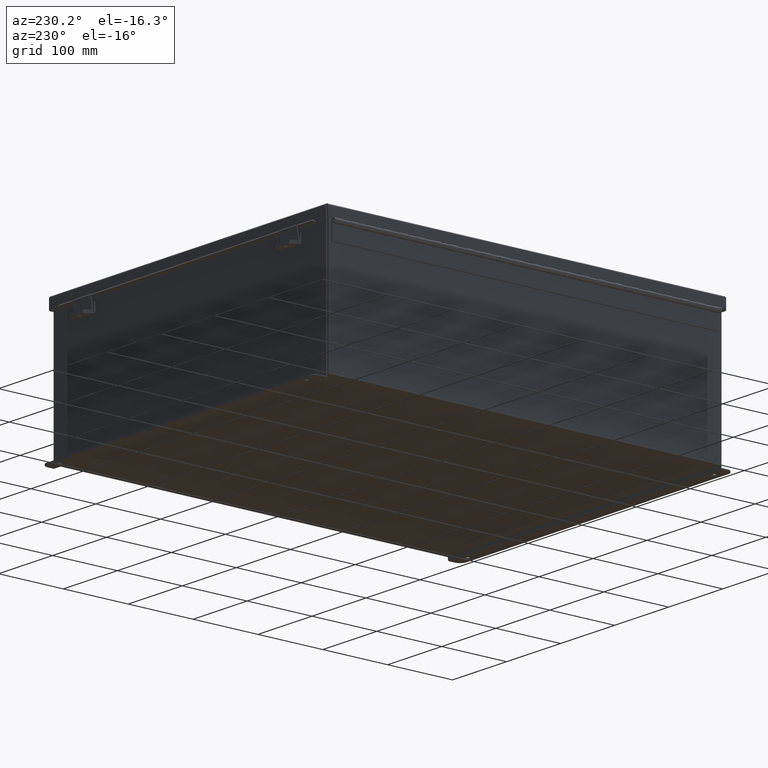
[diagram: clean part render]
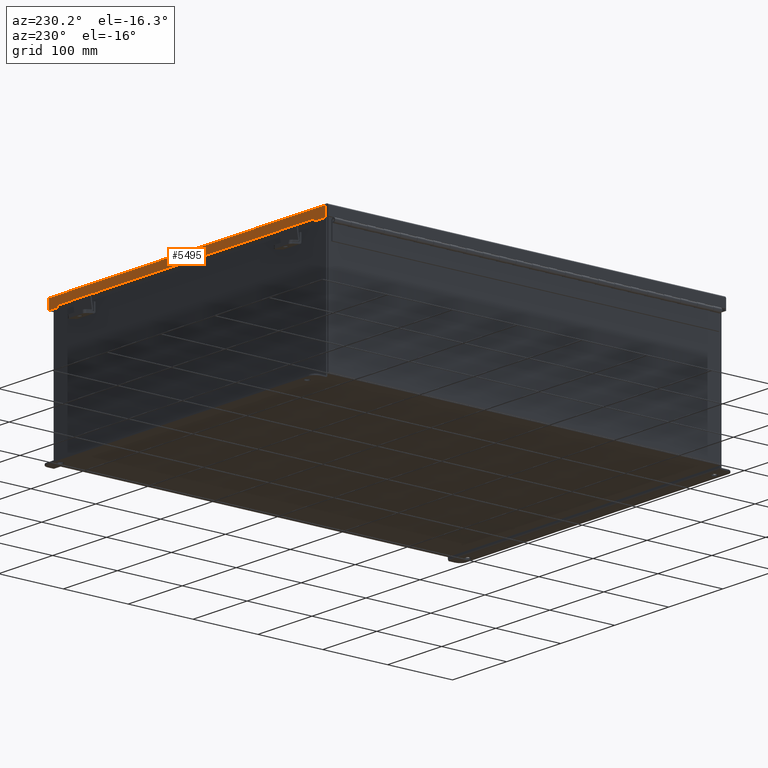
[diagram: same view with one face highlighted and labeled with its STEP entity id]
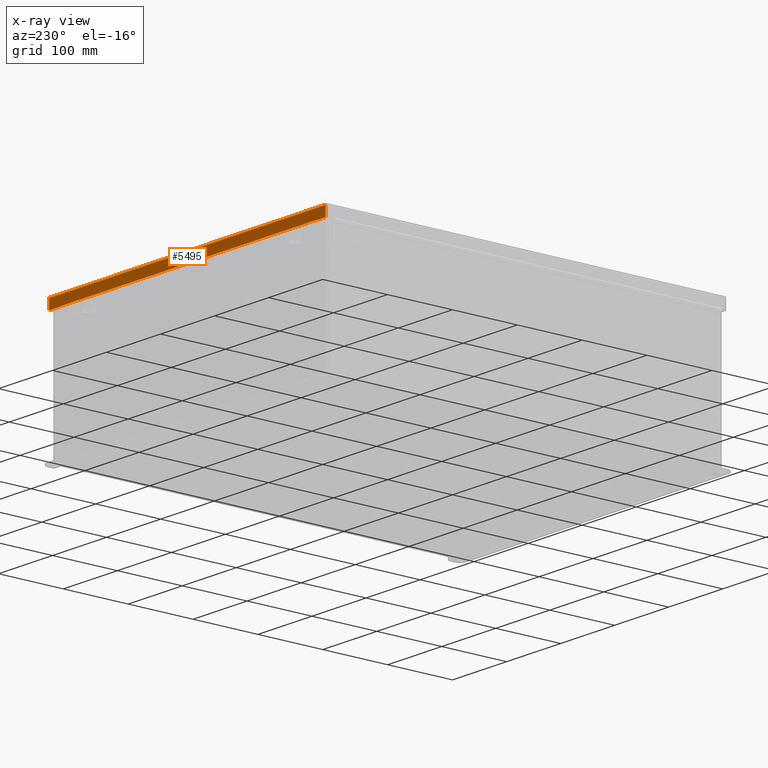
[diagram: x-ray of the same camera — body ghosted, the highlighted face saturated]
A machine part, auxiliary view. The second image highlights one B-rep face of the part: STEP entity #5495.
The next image is the same camera in x-ray: the body ghosted, the highlighted face saturated — about 0% of this face is hidden behind the body in this view.
In plain terms, the highlighted planar face has unit normal (-0, -1, -0).
Its self-contained STEP definition (entity closure, byte-faithful):
#8 = CARTESIAN_POINT ( 'NONE',  ( 10.15625000000003600, 12.15625000000000000, 0.01300000000000010700 ) ) ;
#246 = ORIENTED_EDGE ( 'NONE', *, *, #9505, .T. ) ;
#355 = CARTESIAN_POINT ( 'NONE',  ( 0.0000000000000000000, 12.15625000000000000, -4.370956789862821100E-014 ) ) ;
#1018 = CARTESIAN_POINT ( 'NONE',  ( 9.324478932188171100, 12.15625000000000200, 0.6122999999999994000 ) ) ;
#1692 = EDGE_CURVE ( 'NONE', #19800, #17081, #3083, .T. ) ;
#1781 = ORIENTED_EDGE ( 'NONE', *, *, #15763, .F. ) ;
#1957 = VECTOR ( 'NONE', #24655, 39.37007874015748100 ) ;
#2250 = LINE ( 'NONE', #8, #1957 ) ;
#2802 = EDGE_LOOP ( 'NONE', ( #8506, #8256, #1781, #23294, #246, #12900, #20138, #18580 ) ) ;
#2811 = DIRECTION ( 'NONE',  ( -1.000000000000000000, -3.215975411700707400E-030, -0.0000000000000000000 ) ) ;
#2872 = CARTESIAN_POINT ( 'NONE',  ( -9.324478932188164000, 12.15625000000000200, 0.5967115427318815400 ) ) ;
#2945 = VECTOR ( 'NONE', #3935, 39.37007874015748100 ) ;
#2985 = LINE ( 'NONE', #3908, #2945 ) ;
#2988 = DIRECTION ( 'NONE',  ( -3.347543324056399800E-030, -1.000000000000000000, 3.569293475308532400E-015 ) ) ;
#3046 = VECTOR ( 'NONE', #14112, 39.37007874015748100 ) ;
#3054 = EDGE_CURVE ( 'NONE', #21564, #4871, #11169, .T. ) ;
#3083 = LINE ( 'NONE', #6103, #3046 ) ;
#3413 = EDGE_CURVE ( 'NONE', #24327, #10111, #21163, .T. ) ;
#3908 = CARTESIAN_POINT ( 'NONE',  ( -9.324478932188164000, 12.15625000000000400, 0.5967115427318815400 ) ) ;
#3935 = DIRECTION ( 'NONE',  ( -7.009925220121077000E-014, -1.401985044024209900E-013, 1.000000000000000000 ) ) ;
#4871 = VERTEX_POINT ( 'NONE', #2872 ) ;
#4917 = DIRECTION ( 'NONE',  ( -0.0000000000000000000, 3.569293475308532400E-015, 1.000000000000000000 ) ) ;
#5276 = CARTESIAN_POINT ( 'NONE',  ( 9.324478932188171100, 12.15625000000000400, 0.5967115427318815400 ) ) ;
#5495 = ADVANCED_FACE ( 'NONE', ( #8325 ), #21035, .F. ) ;
#6103 = CARTESIAN_POINT ( 'NONE',  ( -2.134256245050205600E-018, 12.15625000000000200, 0.6122999999999994000 ) ) ;
#6733 = CARTESIAN_POINT ( 'NONE',  ( -10.07447893218816600, 12.15625000000000000, 0.01300000000000010700 ) ) ;
#6980 = VECTOR ( 'NONE', #8852, 39.37007874015748100 ) ;
#7027 = LINE ( 'NONE', #8036, #6980 ) ;
#8036 = CARTESIAN_POINT ( 'NONE',  ( -10.07447893218816600, 12.15625000000000000, -4.370956789862821100E-014 ) ) ;
#8072 = VERTEX_POINT ( 'NONE', #10186 ) ;
#8256 = ORIENTED_EDGE ( 'NONE', *, *, #1692, .T. ) ;
#8325 = FACE_OUTER_BOUND ( 'NONE', #2802, .T. ) ;
#8506 = ORIENTED_EDGE ( 'NONE', *, *, #15580, .F. ) ;
#8838 = AXIS2_PLACEMENT_3D ( 'NONE', #355, #2988, #10190 ) ;
#8852 = DIRECTION ( 'NONE',  ( 0.0000000000000000000, 3.569293475308532400E-015, 1.000000000000000000 ) ) ;
#9505 = EDGE_CURVE ( 'NONE', #19362, #24327, #7027, .T. ) ;
#10111 = VERTEX_POINT ( 'NONE', #14864 ) ;
#10186 = CARTESIAN_POINT ( 'NONE',  ( 10.07447893218817100, 12.15625000000000000, 0.01300000000000010700 ) ) ;
#10190 = DIRECTION ( 'NONE',  ( 0.0000000000000000000, -3.569293475308532400E-015, -1.000000000000000000 ) ) ;
#11169 = LINE ( 'NONE', #5276, #12065 ) ;
#11326 = CARTESIAN_POINT ( 'NONE',  ( 9.324478932188171100, 12.15625000000000200, 0.5967115427318815400 ) ) ;
#12065 = VECTOR ( 'NONE', #2811, 39.37007874015748100 ) ;
#12232 = DIRECTION ( 'NONE',  ( 7.009925220121354700E-014, 1.401985044024265100E-013, -1.000000000000000000 ) ) ;
#12900 = ORIENTED_EDGE ( 'NONE', *, *, #3413, .T. ) ;
#14112 = DIRECTION ( 'NONE',  ( 1.000000000000000000, 3.215538059845590000E-030, 3.362274453740340600E-018 ) ) ;
#14272 = DIRECTION ( 'NONE',  ( 1.000000000000000000, 3.215538059845590000E-030, 3.362274453740340600E-018 ) ) ;
#14864 = CARTESIAN_POINT ( 'NONE',  ( -9.324478932188165800, 12.15625000000000200, 0.6123000000000005100 ) ) ;
#15580 = EDGE_CURVE ( 'NONE', #19800, #21564, #18691, .T. ) ;
#15763 = EDGE_CURVE ( 'NONE', #8072, #17081, #17844, .T. ) ;
#16619 = CARTESIAN_POINT ( 'NONE',  ( -10.07447893218816600, 12.15625000000000200, 0.6123000000000005100 ) ) ;
#17081 = VERTEX_POINT ( 'NONE', #23891 ) ;
#17763 = VECTOR ( 'NONE', #4917, 39.37007874015748100 ) ;
#17844 = LINE ( 'NONE', #23461, #17763 ) ;
#18569 = CARTESIAN_POINT ( 'NONE',  ( -2.134256245050205600E-018, 12.15625000000000200, 0.6122999999999994000 ) ) ;
#18580 = ORIENTED_EDGE ( 'NONE', *, *, #3054, .F. ) ;
#18672 = VECTOR ( 'NONE', #12232, 39.37007874015748100 ) ;
#18691 = LINE ( 'NONE', #21914, #18672 ) ;
#19362 = VERTEX_POINT ( 'NONE', #6733 ) ;
#19598 = EDGE_CURVE ( 'NONE', #4871, #10111, #2985, .T. ) ;
#19800 = VERTEX_POINT ( 'NONE', #1018 ) ;
#19864 = EDGE_CURVE ( 'NONE', #19362, #8072, #2250, .T. ) ;
#20138 = ORIENTED_EDGE ( 'NONE', *, *, #19598, .F. ) ;
#21035 = PLANE ( 'NONE',  #8838 ) ;
#21163 = LINE ( 'NONE', #18569, #23929 ) ;
#21564 = VERTEX_POINT ( 'NONE', #11326 ) ;
#21914 = CARTESIAN_POINT ( 'NONE',  ( 9.324478932188171100, 12.15625000000000200, 0.6122999999999994000 ) ) ;
#23294 = ORIENTED_EDGE ( 'NONE', *, *, #19864, .F. ) ;
#23461 = CARTESIAN_POINT ( 'NONE',  ( 10.07447893218817100, 12.15625000000000000, 0.0000000000000000000 ) ) ;
#23891 = CARTESIAN_POINT ( 'NONE',  ( 10.07447893218817100, 12.15625000000000200, 0.6122999999999994000 ) ) ;
#23929 = VECTOR ( 'NONE', #14272, 39.37007874015748100 ) ;
#24327 = VERTEX_POINT ( 'NONE', #16619 ) ;
#24655 = DIRECTION ( 'NONE',  ( 1.000000000000000000, 3.215975411700707400E-030, -0.0000000000000000000 ) ) ;